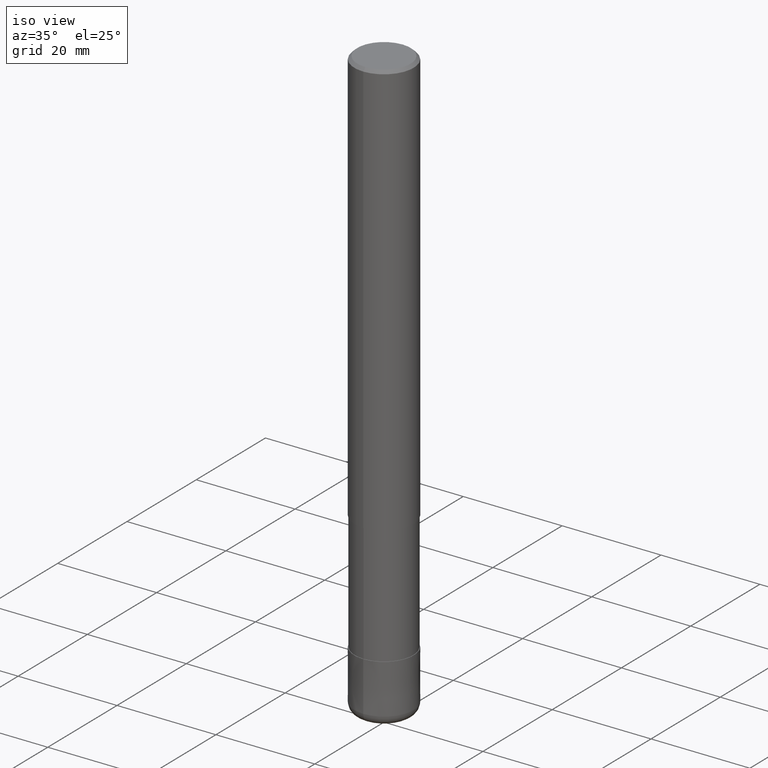
[diagram: clean part render]
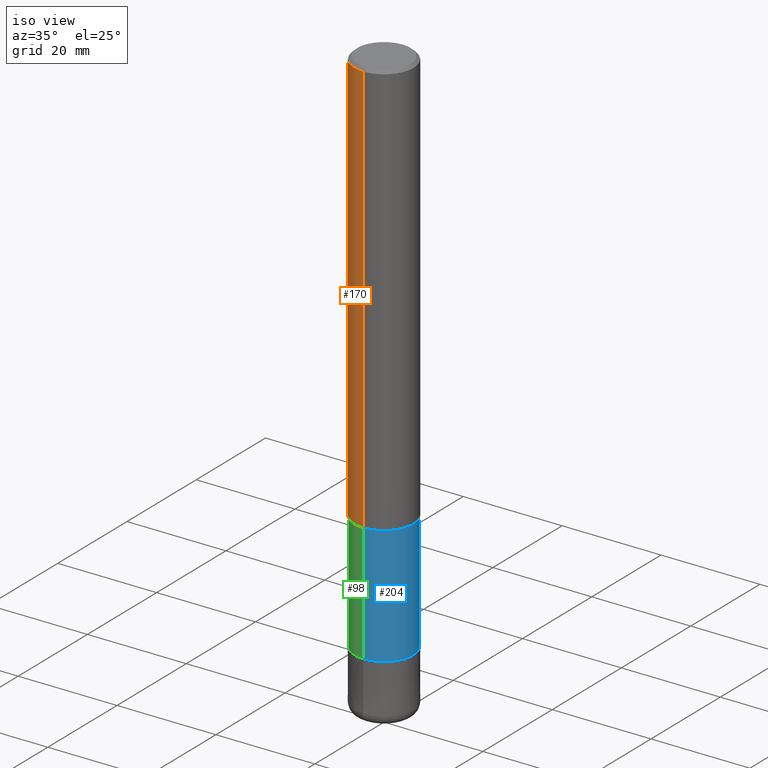
[diagram: same view with three faces highlighted in distinct colors, each labeled with its STEP entity id]
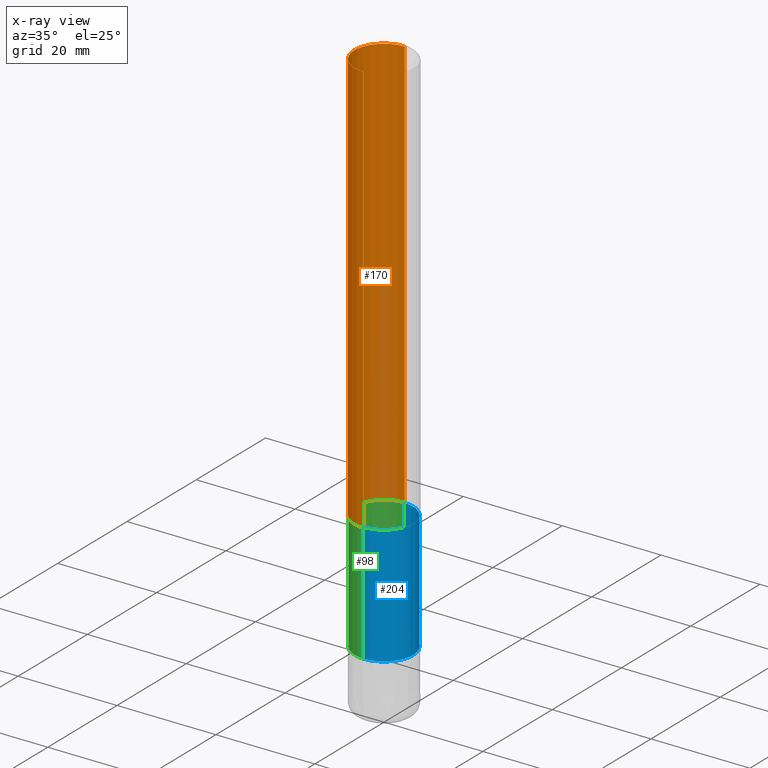
[diagram: x-ray of the same camera — body ghosted, the three highlighted faces saturated]
A machine part, iso view with three faces highlighted in distinct colors.
The next image is the same camera in x-ray (body ghosted, the three faces saturated) — at least one of them is partly hidden behind the body in this view.
Their STEP definitions:

[orange] entity #170 — the highlighted cylindrical surface (edge-blend (fillet) strip) has radius 6 mm, axis along (-0, -0, 1).
#94=EDGE_CURVE('',#174,#122,#233,.T.);
#114=EDGE_CURVE('',#184,#174,#257,.T.);
#122=VERTEX_POINT('',#266);
#136=EDGE_CURVE('',#144,#184,#280,.T.);
#144=VERTEX_POINT('',#290);
#160=EDGE_CURVE('',#144,#122,#306,.T.);
#170=ADVANCED_FACE('',(#316),#317,.T.);
#174=VERTEX_POINT('',#322);
#184=VERTEX_POINT('',#333);
#233=LINE('',#379,#380);
#257=CIRCLE('',#408,6.0);
#266=CARTESIAN_POINT('',(0.0,6.0,-84.0));
#280=LINE('',#437,#438);
#290=CARTESIAN_POINT('',(7.34763812293426E-016,-6.0,-84.0));
#306=CIRCLE('',#473,6.0);
#316=FACE_OUTER_BOUND('',#486,.T.);
#317=CYLINDRICAL_SURFACE('',#487,6.0);
#322=CARTESIAN_POINT('',(0.0,6.0,-0.599999999999994));
#333=CARTESIAN_POINT('',(7.34763812293426E-016,-6.0,-0.599999999999994));
#379=CARTESIAN_POINT('',(-7.34763812293426E-016,6.0,-42.3));
#380=VECTOR('',#548,1.0);
#408=AXIS2_PLACEMENT_3D('',#594,#595,#596);
#437=CARTESIAN_POINT('',(7.34763812293426E-016,-6.0,-42.3));
#438=VECTOR('',#619,1.0);
#473=AXIS2_PLACEMENT_3D('',#648,#649,#650);
#486=EDGE_LOOP('',(#656,#657,#658,#659));
#487=AXIS2_PLACEMENT_3D('',#660,#661,#662);
#548=DIRECTION('',(0.0,0.0,-1.0));
#594=CARTESIAN_POINT('',(0.0,0.0,-0.599999999999994));
#595=DIRECTION('',(0.0,0.0,-1.0));
#596=DIRECTION('',(0.0,1.0,0.0));
#619=DIRECTION('',(-0.0,-0.0,1.0));
#648=CARTESIAN_POINT('',(0.0,0.0,-84.0));
#649=DIRECTION('',(0.0,0.0,-1.0));
#650=DIRECTION('',(0.0,1.0,0.0));
#656=ORIENTED_EDGE('',*,*,#94,.T.);
#657=ORIENTED_EDGE('',*,*,#160,.F.);
#658=ORIENTED_EDGE('',*,*,#136,.T.);
#659=ORIENTED_EDGE('',*,*,#114,.T.);
#660=CARTESIAN_POINT('',(0.0,0.0,-42.3));
#661=DIRECTION('',(-0.0,-0.0,1.0));
#662=DIRECTION('',(0.0,1.0,0.0));

[blue] entity #204 — the highlighted cylindrical surface (edge-blend (fillet) strip) has radius 5.91 mm, axis along (-0, -0, 1).
#134=EDGE_CURVE('',#202,#162,#278,.T.);
#148=VERTEX_POINT('',#294);
#158=EDGE_CURVE('',#162,#148,#304,.T.);
#162=VERTEX_POINT('',#308);
#178=EDGE_CURVE('',#148,#190,#326,.T.);
#182=EDGE_CURVE('',#202,#190,#331,.T.);
#190=VERTEX_POINT('',#340);
#202=VERTEX_POINT('',#354);
#204=ADVANCED_FACE('',(#356),#357,.T.);
#278=LINE('',#433,#434);
#294=CARTESIAN_POINT('',(7.23736232077256E-016,-5.90995,-108.0));
#304=CIRCLE('',#470,5.90995);
#308=CARTESIAN_POINT('',(0.0,5.90995,-108.0));
#326=LINE('',#497,#498);
#331=CIRCLE('',#504,5.90995);
#340=CARTESIAN_POINT('',(7.23736232077256E-016,-5.90995,-84.0));
#354=CARTESIAN_POINT('',(0.0,5.90995,-84.0));
#356=FACE_OUTER_BOUND('',#532,.T.);
#357=CYLINDRICAL_SURFACE('',#533,5.90995);
#433=CARTESIAN_POINT('',(-7.23736232077256E-016,5.90995,-96.0));
#434=VECTOR('',#618,1.0);
#470=AXIS2_PLACEMENT_3D('',#645,#646,#647);
#497=CARTESIAN_POINT('',(7.23736232077256E-016,-5.90995,-96.0));
#498=VECTOR('',#669,1.0);
#504=AXIS2_PLACEMENT_3D('',#676,#677,#678);
#532=EDGE_LOOP('',(#706,#707,#708,#709));
#533=AXIS2_PLACEMENT_3D('',#710,#711,#712);
#618=DIRECTION('',(0.0,0.0,-1.0));
#645=CARTESIAN_POINT('',(0.0,0.0,-108.0));
#646=DIRECTION('',(0.0,0.0,-1.0));
#647=DIRECTION('',(0.0,1.0,0.0));
#669=DIRECTION('',(-0.0,-0.0,1.0));
#676=CARTESIAN_POINT('',(0.0,0.0,-84.0));
#677=DIRECTION('',(0.0,0.0,-1.0));
#678=DIRECTION('',(0.0,1.0,0.0));
#706=ORIENTED_EDGE('',*,*,#134,.F.);
#707=ORIENTED_EDGE('',*,*,#182,.T.);
#708=ORIENTED_EDGE('',*,*,#178,.F.);
#709=ORIENTED_EDGE('',*,*,#158,.F.);
#710=CARTESIAN_POINT('',(0.0,0.0,-96.0));
#711=DIRECTION('',(-0.0,-0.0,1.0));
#712=DIRECTION('',(0.0,1.0,0.0));

[green] entity #98 — the highlighted cylindrical surface (edge-blend (fillet) strip) has radius 5.91 mm, axis along (-0, -0, 1).
#98=ADVANCED_FACE('',(#237),#238,.T.);
#134=EDGE_CURVE('',#202,#162,#278,.T.);
#140=EDGE_CURVE('',#190,#202,#285,.T.);
#148=VERTEX_POINT('',#294);
#152=EDGE_CURVE('',#148,#162,#298,.T.);
#162=VERTEX_POINT('',#308);
#178=EDGE_CURVE('',#148,#190,#326,.T.);
#190=VERTEX_POINT('',#340);
#202=VERTEX_POINT('',#354);
#237=FACE_OUTER_BOUND('',#385,.T.);
#238=CYLINDRICAL_SURFACE('',#386,5.90995);
#278=LINE('',#433,#434);
#285=CIRCLE('',#444,5.90995);
#294=CARTESIAN_POINT('',(7.23736232077256E-016,-5.90995,-108.0));
#298=CIRCLE('',#462,5.90995);
#308=CARTESIAN_POINT('',(0.0,5.90995,-108.0));
#326=LINE('',#497,#498);
#340=CARTESIAN_POINT('',(7.23736232077256E-016,-5.90995,-84.0));
#354=CARTESIAN_POINT('',(0.0,5.90995,-84.0));
#385=EDGE_LOOP('',(#553,#554,#555,#556));
#386=AXIS2_PLACEMENT_3D('',#557,#558,#559);
#433=CARTESIAN_POINT('',(-7.23736232077256E-016,5.90995,-96.0));
#434=VECTOR('',#618,1.0);
#444=AXIS2_PLACEMENT_3D('',#626,#627,#628);
#462=AXIS2_PLACEMENT_3D('',#639,#640,#641);
#497=CARTESIAN_POINT('',(7.23736232077256E-016,-5.90995,-96.0));
#498=VECTOR('',#669,1.0);
#553=ORIENTED_EDGE('',*,*,#134,.T.);
#554=ORIENTED_EDGE('',*,*,#152,.F.);
#555=ORIENTED_EDGE('',*,*,#178,.T.);
#556=ORIENTED_EDGE('',*,*,#140,.T.);
#557=CARTESIAN_POINT('',(0.0,0.0,-96.0));
#558=DIRECTION('',(-0.0,-0.0,1.0));
#559=DIRECTION('',(0.0,1.0,0.0));
#618=DIRECTION('',(0.0,0.0,-1.0));
#626=CARTESIAN_POINT('',(0.0,0.0,-84.0));
#627=DIRECTION('',(0.0,0.0,-1.0));
#628=DIRECTION('',(0.0,1.0,0.0));
#639=CARTESIAN_POINT('',(0.0,0.0,-108.0));
#640=DIRECTION('',(0.0,0.0,-1.0));
#641=DIRECTION('',(0.0,1.0,0.0));
#669=DIRECTION('',(-0.0,-0.0,1.0));